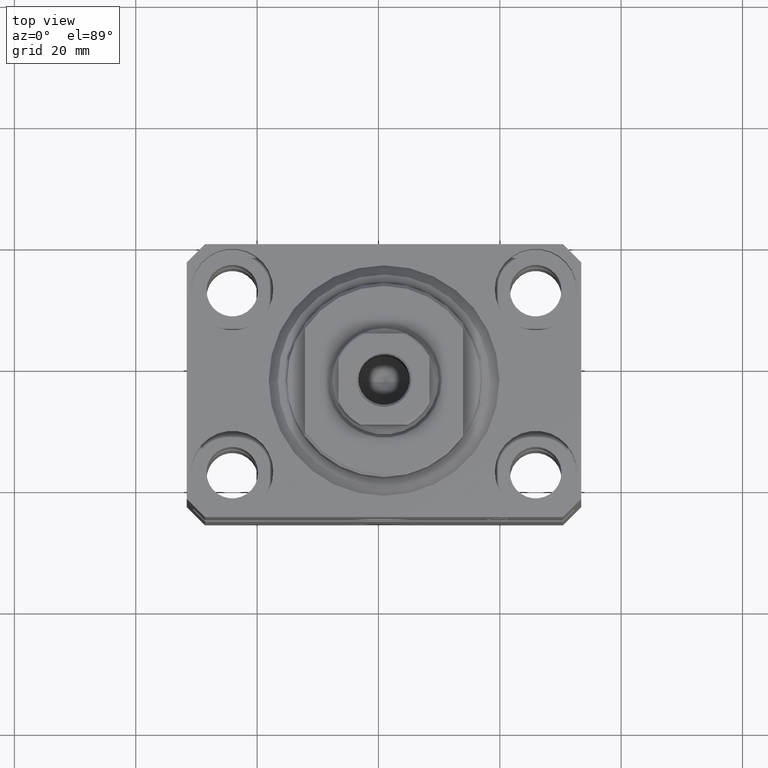
[diagram: clean part render]
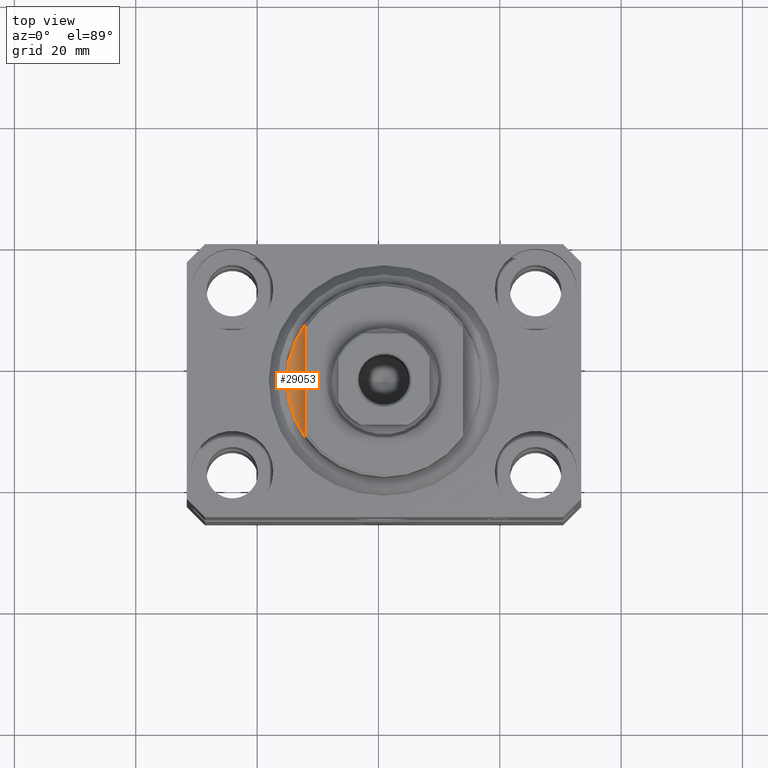
[diagram: same view with one face highlighted and labeled with its STEP entity id]
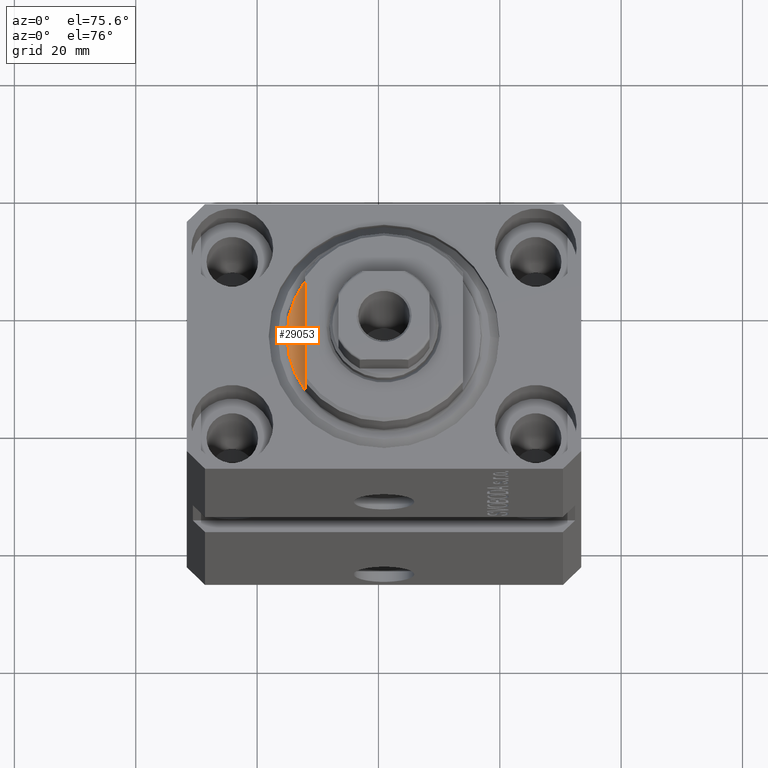
[diagram: same view with one face highlighted and labeled with its STEP entity id]
A machine part, top view. The second image highlights one B-rep face of the part: STEP entity #29053.
A second angle (auxiliary view) of the same face is appended — the face is thin or edge-on in the first view.
In plain terms, the highlighted planar face has unit normal (0, 0, 1).
Its self-contained STEP definition (entity closure, byte-faithful):
#757 = AXIS2_PLACEMENT_3D ( 'NONE', #20314, #40768, #16511 ) ;
#2106 = ORIENTED_EDGE ( 'NONE', *, *, #35594, .F. ) ;
#3646 = DIRECTION ( 'NONE',  ( 0.000000000000000000, 0.000000000000000000, -1.000000000000000000 ) ) ;
#7923 = VERTEX_POINT ( 'NONE', #32584 ) ;
#8044 = CARTESIAN_POINT ( 'NONE',  ( 13.00000000000000000, 9.327379053088815652, -0.4999999999999995559 ) ) ;
#13972 = DIRECTION ( 'NONE',  ( 1.000000000000000000, 0.000000000000000000, 0.000000000000000000 ) ) ;
#14899 = VECTOR ( 'NONE', #29513, 1000.000000000000000 ) ;
#15582 = CARTESIAN_POINT ( 'NONE',  ( 13.00000000000000000, -43.08131845707602992, -0.4999999999999995559 ) ) ;
#15883 = EDGE_CURVE ( 'NONE', #33899, #42223, #17976, .T. ) ;
#16511 = DIRECTION ( 'NONE',  ( 1.000000000000000000, 5.329070518200751394E-15, 0.000000000000000000 ) ) ;
#17976 = CIRCLE ( 'NONE', #757, 16.00000000000000000 ) ;
#19895 = DIRECTION ( 'NONE',  ( -0.000000000000000000, -0.000000000000000000, -1.000000000000000000 ) ) ;
#19960 = EDGE_LOOP ( 'NONE', ( #21231, #31181, #2106 ) ) ;
#20314 = CARTESIAN_POINT ( 'NONE',  ( 0.000000000000000000, 0.000000000000000000, -0.4999999999999995559 ) ) ;
#21231 = ORIENTED_EDGE ( 'NONE', *, *, #15883, .T. ) ;
#21788 = CARTESIAN_POINT ( 'NONE',  ( 16.00000000000000000, 0.000000000000000000, -0.4999999999999995559 ) ) ;
#22327 = LINE ( 'NONE', #15582, #14899 ) ;
#27011 = PLANE ( 'NONE',  #34133 ) ;
#27673 = FACE_OUTER_BOUND ( 'NONE', #19960, .T. ) ;
#29053 = ADVANCED_FACE ( 'NONE', ( #27673 ), #27011, .T. ) ;
#29513 = DIRECTION ( 'NONE',  ( 0.000000000000000000, -1.000000000000000000, -0.000000000000000000 ) ) ;
#30724 = AXIS2_PLACEMENT_3D ( 'NONE', #33833, #19895, #33605 ) ;
#31181 = ORIENTED_EDGE ( 'NONE', *, *, #35272, .T. ) ;
#32584 = CARTESIAN_POINT ( 'NONE',  ( 13.00000000000000000, -9.327379053088815652, -0.4999999999999995559 ) ) ;
#33605 = DIRECTION ( 'NONE',  ( 1.000000000000000000, 0.000000000000000000, 0.000000000000000000 ) ) ;
#33833 = CARTESIAN_POINT ( 'NONE',  ( 0.000000000000000000, 0.000000000000000000, -0.4999999999999995559 ) ) ;
#33899 = VERTEX_POINT ( 'NONE', #8044 ) ;
#34133 = AXIS2_PLACEMENT_3D ( 'NONE', #38241, #3646, #13972 ) ;
#35023 = CIRCLE ( 'NONE', #30724, 16.00000000000000000 ) ;
#35272 = EDGE_CURVE ( 'NONE', #42223, #7923, #35023, .T. ) ;
#35594 = EDGE_CURVE ( 'NONE', #33899, #7923, #22327, .T. ) ;
#38241 = CARTESIAN_POINT ( 'NONE',  ( 0.000000000000000000, 0.000000000000000000, -0.4999999999999995559 ) ) ;
#40768 = DIRECTION ( 'NONE',  ( -0.000000000000000000, -0.000000000000000000, -1.000000000000000000 ) ) ;
#42223 = VERTEX_POINT ( 'NONE', #21788 ) ;